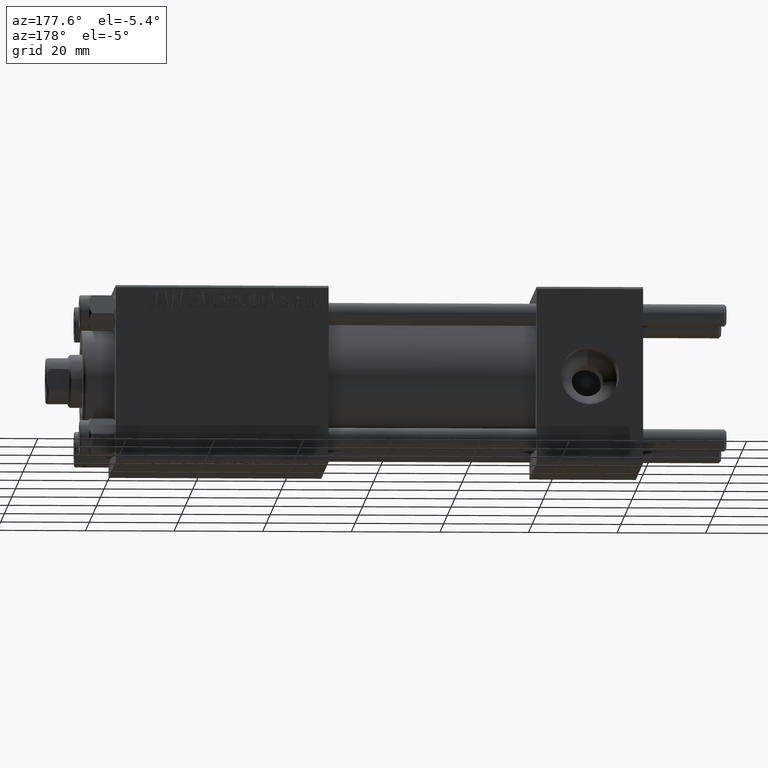
[diagram: clean part render]
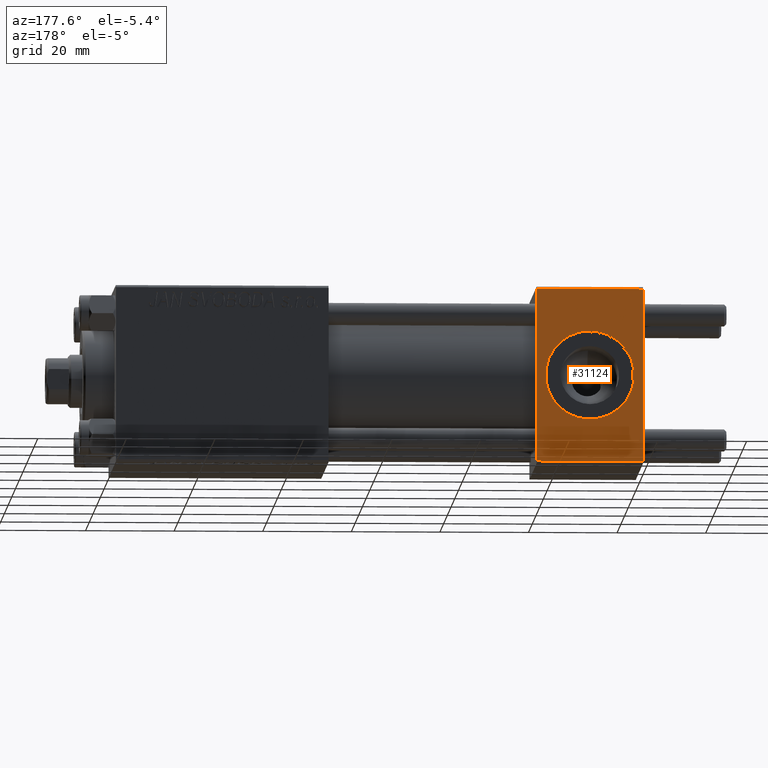
[diagram: same view with one face highlighted and labeled with its STEP entity id]
A machine part, auxiliary view. The second image highlights one B-rep face of the part: STEP entity #31124.
In plain terms, the highlighted planar face has unit normal (0, 1, 0).
Its self-contained STEP definition (entity closure, byte-faithful):
#1366 = CARTESIAN_POINT ( 'NONE',  ( 12.00000000000000000, 20.00000000000000000, 0.000000000000000000 ) ) ;
#2073 = ORIENTED_EDGE ( 'NONE', *, *, #33561, .F. ) ;
#2747 = VERTEX_POINT ( 'NONE', #42821 ) ;
#2800 = FACE_OUTER_BOUND ( 'NONE', #37545, .T. ) ;
#3508 = DIRECTION ( 'NONE',  ( -1.000000000000000000, 0.000000000000000000, 0.000000000000000000 ) ) ;
#4818 = CARTESIAN_POINT ( 'NONE',  ( 0.000000000000000000, 20.00000000000000000, 19.49999999999999289 ) ) ;
#6190 = CARTESIAN_POINT ( 'NONE',  ( 24.00000000000000000, 20.00000000000000000, 20.00000000000000000 ) ) ;
#6354 = ORIENTED_EDGE ( 'NONE', *, *, #25815, .T. ) ;
#6391 = VERTEX_POINT ( 'NONE', #24620 ) ;
#6528 = ORIENTED_EDGE ( 'NONE', *, *, #42858, .T. ) ;
#8253 = LINE ( 'NONE', #36190, #45868 ) ;
#8381 = ORIENTED_EDGE ( 'NONE', *, *, #45614, .F. ) ;
#8435 = EDGE_CURVE ( 'NONE', #33961, #2747, #26525, .T. ) ;
#8665 = EDGE_LOOP ( 'NONE', ( #28018, #8381 ) ) ;
#9451 = DIRECTION ( 'NONE',  ( 0.000000000000000000, 1.000000000000000000, 0.000000000000000000 ) ) ;
#10104 = FACE_BOUND ( 'NONE', #8665, .T. ) ;
#13504 = VECTOR ( 'NONE', #3508, 1000.000000000000000 ) ;
#13763 = CARTESIAN_POINT ( 'NONE',  ( 24.00000000000000000, 20.00000000000000000, 19.49999999999999289 ) ) ;
#16646 = LINE ( 'NONE', #13763, #21344 ) ;
#16942 = VERTEX_POINT ( 'NONE', #4818 ) ;
#17879 = DIRECTION ( 'NONE',  ( 0.000000000000000000, 0.000000000000000000, 1.000000000000000000 ) ) ;
#18398 = DIRECTION ( 'NONE',  ( 0.000000000000000000, 0.000000000000000000, -1.000000000000000000 ) ) ;
#18652 = CARTESIAN_POINT ( 'NONE',  ( 24.00000000000000000, 20.00000000000000000, 19.49999999999999289 ) ) ;
#21344 = VECTOR ( 'NONE', #32583, 1000.000000000000000 ) ;
#21450 = DIRECTION ( 'NONE',  ( 0.000000000000000000, 0.000000000000000000, 1.000000000000000000 ) ) ;
#21844 = PLANE ( 'NONE',  #43245 ) ;
#21962 = CARTESIAN_POINT ( 'NONE',  ( 24.00000000000000000, 20.00000000000000000, -19.50000000000002132 ) ) ;
#22359 = DIRECTION ( 'NONE',  ( 0.000000000000000000, -0.000000000000000000, 1.000000000000000000 ) ) ;
#24109 = LINE ( 'NONE', #28299, #13504 ) ;
#24620 = CARTESIAN_POINT ( 'NONE',  ( 0.000000000000000000, 20.00000000000000000, -19.50000000000002132 ) ) ;
#25036 = VERTEX_POINT ( 'NONE', #18652 ) ;
#25815 = EDGE_CURVE ( 'NONE', #16942, #25036, #16646, .T. ) ;
#26525 = CIRCLE ( 'NONE', #34084, 10.00000000000000000 ) ;
#28018 = ORIENTED_EDGE ( 'NONE', *, *, #8435, .F. ) ;
#28299 = CARTESIAN_POINT ( 'NONE',  ( 24.00000000000000000, 20.00000000000000000, -19.50000000000002132 ) ) ;
#31123 = ORIENTED_EDGE ( 'NONE', *, *, #37244, .T. ) ;
#31124 = ADVANCED_FACE ( 'NONE', ( #10104, #2800 ), #21844, .T. ) ;
#32583 = DIRECTION ( 'NONE',  ( 1.000000000000000000, 0.000000000000000000, 0.000000000000000000 ) ) ;
#33561 = EDGE_CURVE ( 'NONE', #16942, #6391, #8253, .T. ) ;
#33807 = DIRECTION ( 'NONE',  ( 0.000000000000000000, 1.000000000000000000, 0.000000000000000000 ) ) ;
#33961 = VERTEX_POINT ( 'NONE', #42225 ) ;
#34084 = AXIS2_PLACEMENT_3D ( 'NONE', #1366, #9451, #21450 ) ;
#36190 = CARTESIAN_POINT ( 'NONE',  ( 0.000000000000000000, 20.00000000000000000, 20.00000000000000000 ) ) ;
#37244 = EDGE_CURVE ( 'NONE', #25036, #51454, #37980, .T. ) ;
#37545 = EDGE_LOOP ( 'NONE', ( #31123, #6528, #2073, #6354 ) ) ;
#37715 = CARTESIAN_POINT ( 'NONE',  ( 12.00000000000000000, 20.00000000000000000, 0.000000000000000000 ) ) ;
#37826 = CIRCLE ( 'NONE', #46974, 10.00000000000000000 ) ;
#37980 = LINE ( 'NONE', #38751, #49189 ) ;
#38751 = CARTESIAN_POINT ( 'NONE',  ( 24.00000000000000000, 20.00000000000000000, 20.00000000000000000 ) ) ;
#40350 = DIRECTION ( 'NONE',  ( 0.000000000000000000, 0.000000000000000000, -1.000000000000000000 ) ) ;
#42225 = CARTESIAN_POINT ( 'NONE',  ( 12.00000000000000000, 20.00000000000000000, 10.00000000000000000 ) ) ;
#42821 = CARTESIAN_POINT ( 'NONE',  ( 12.00000000000000178, 20.00000000000000000, -10.00000000000000000 ) ) ;
#42858 = EDGE_CURVE ( 'NONE', #51454, #6391, #24109, .T. ) ;
#43245 = AXIS2_PLACEMENT_3D ( 'NONE', #6190, #50045, #22359 ) ;
#45614 = EDGE_CURVE ( 'NONE', #2747, #33961, #37826, .T. ) ;
#45868 = VECTOR ( 'NONE', #40350, 1000.000000000000000 ) ;
#46974 = AXIS2_PLACEMENT_3D ( 'NONE', #37715, #33807, #17879 ) ;
#49189 = VECTOR ( 'NONE', #18398, 1000.000000000000000 ) ;
#50045 = DIRECTION ( 'NONE',  ( -0.000000000000000000, 1.000000000000000000, 0.000000000000000000 ) ) ;
#51454 = VERTEX_POINT ( 'NONE', #21962 ) ;